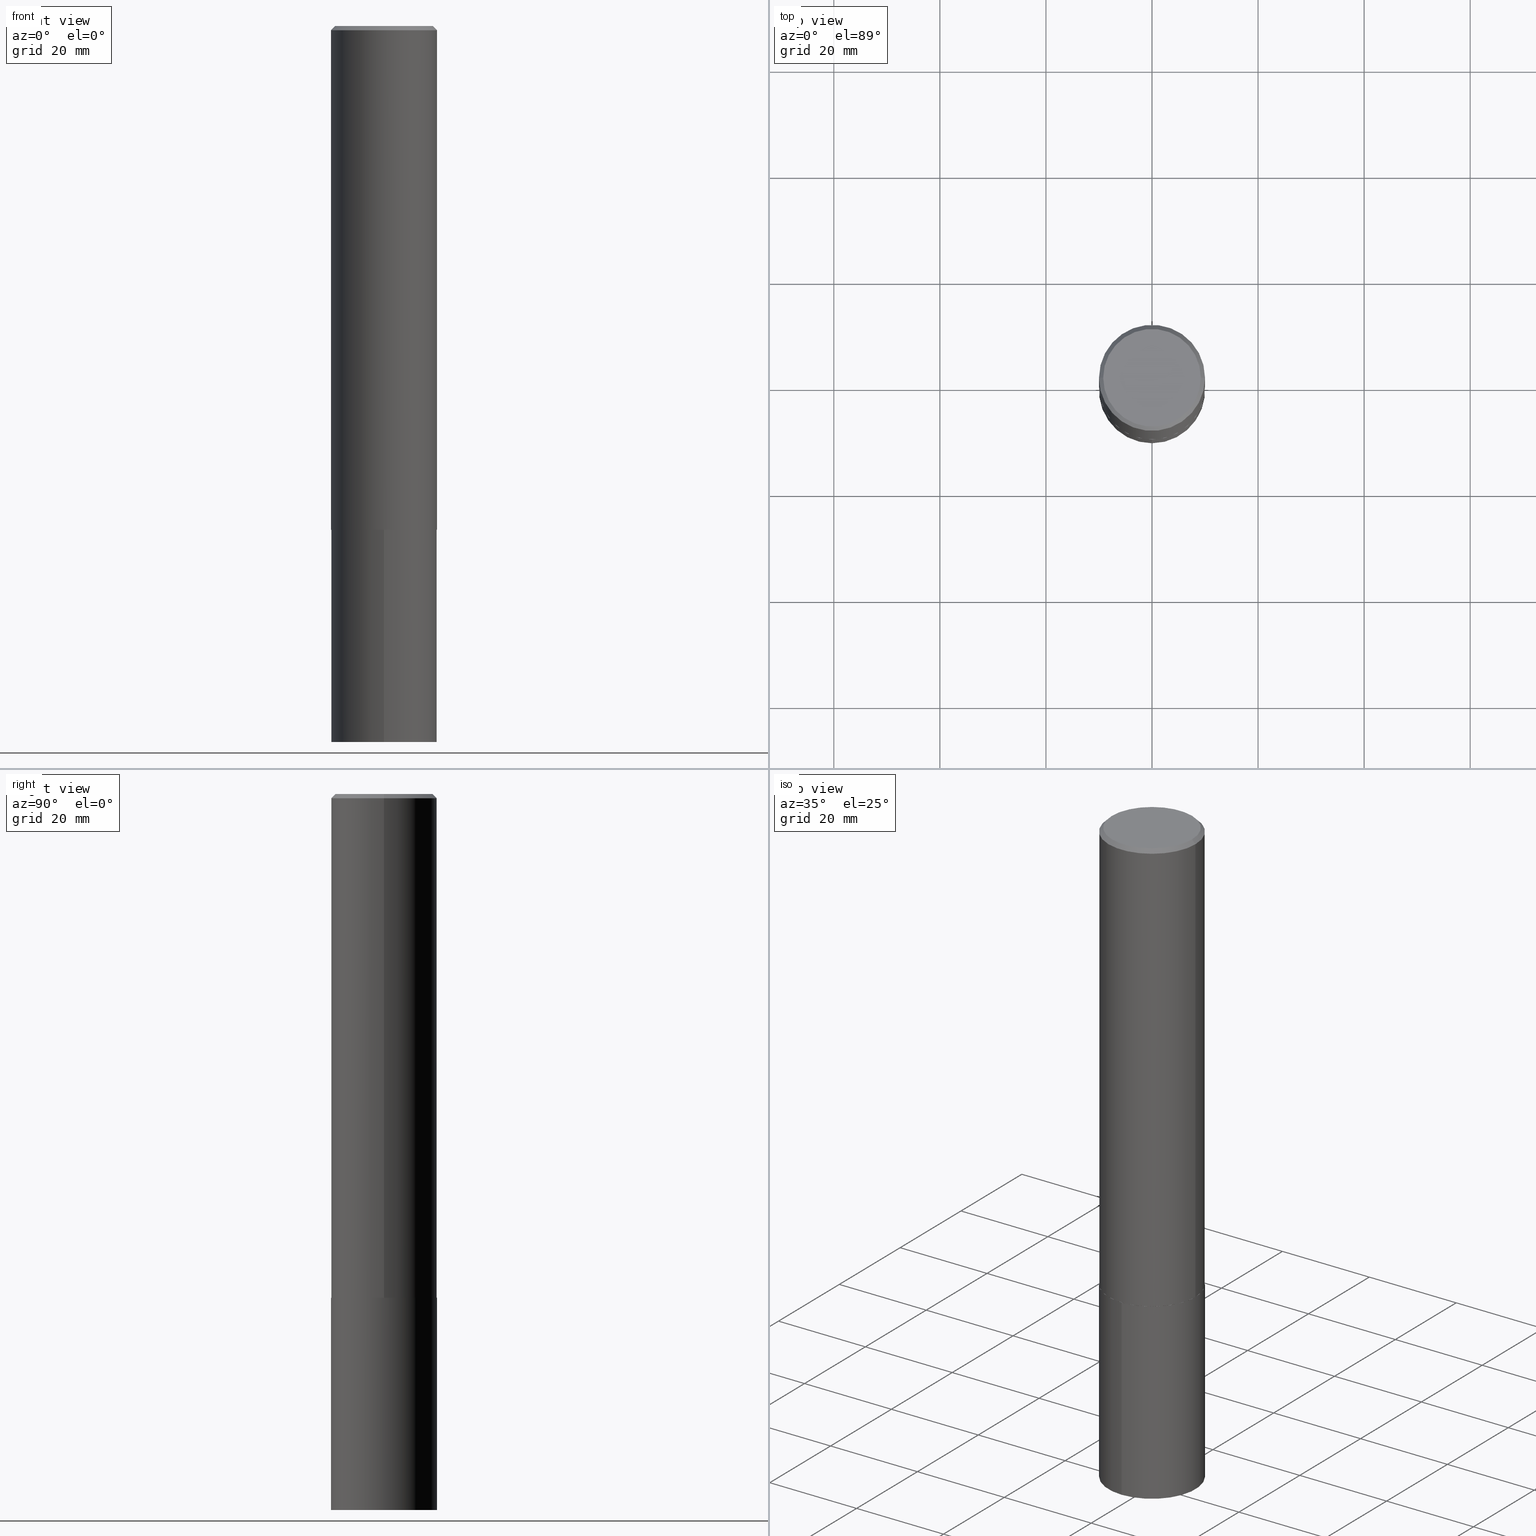
[diagram: canonical four-view strip — front | top / right | iso, engineering-drawing reading convention]
A machine part, canonical four-view strip (front | top / right | iso — engineering-drawing reading convention). The complete STEP part file that produces these views, byte-faithful:
ISO-10303-21;
HEADER;
FILE_DESCRIPTION (( 'STEP AP203' ),
    '1' );
FILE_NAME ('67184.STEP',
    '2024-04-23T12:52:43',
    ( '' ),
    ( '' ),
    'SwSTEP 2.0',
    'SolidWorks 2023',
    '' );
FILE_SCHEMA (( 'CONFIG_CONTROL_DESIGN' ));
ENDSEC;

DATA;
#1 = EDGE_CURVE ( 'NONE', #155, #301, #218, .T. ) ;
#2 = CYLINDRICAL_SURFACE ( 'NONE', #157, 0.3937000000000002164 ) ;
#3 = ORIENTED_EDGE ( 'NONE', *, *, #129, .F. ) ;
#4 = DIRECTION ( 'NONE',  ( 0.7071067811865456854, -7.319954787623249734E-15, -0.7071067811865493491 ) ) ;
#5 = CALENDAR_DATE ( 2024, 23, 4 ) ;
#6 = LINE ( 'NONE', #318, #302 ) ;
#7 = VECTOR ( 'NONE', #305, 39.37007874015748143 ) ;
#8 = VERTEX_POINT ( 'NONE', #189 ) ;
#9 = PERSON_AND_ORGANIZATION ( #136, #345 ) ;
#10 = EDGE_CURVE ( 'NONE', #123, #354, #14, .T. ) ;
#11 = DIRECTION ( 'NONE',  ( 1.000000000000000000, -6.982962677686265133E-15, 0.000000000000000000 ) ) ;
#12 = APPROVAL_STATUS ( 'not_yet_approved' ) ;
#13 = SECURITY_CLASSIFICATION_LEVEL ( 'unclassified' ) ;
#14 = CIRCLE ( 'NONE', #366, 0.3932000000000017148 ) ;
#15 = FACE_OUTER_BOUND ( 'NONE', #325, .T. ) ;
#16 = CC_DESIGN_PERSON_AND_ORGANIZATION_ASSIGNMENT ( #9, #60, ( #107 ) ) ;
#17 = DIRECTION ( 'NONE',  ( 2.445468806185136597E-29, -3.491481338843145583E-15, -1.000000000000000000 ) ) ;
#18 = EDGE_LOOP ( 'NONE', ( #321, #111, #291, #173 ) ) ;
#19 = DIRECTION ( 'NONE',  ( -6.982962677686265133E-15, -1.000000000000000000, 4.163344669033674845E-15 ) ) ;
#20 = DIMENSIONAL_EXPONENTS ( 1.000000000000000000, 0.000000000000000000, 0.000000000000000000, 0.000000000000000000, 0.000000000000000000, 0.000000000000000000, 0.000000000000000000 ) ;
#21 = VECTOR ( 'NONE', #243, 39.37007874015748143 ) ;
#22 = CONICAL_SURFACE ( 'NONE', #55, 0.3937000000000000499, 0.7853981633974457255 ) ;
#23 = DIRECTION ( 'NONE',  ( 2.438088387897960049E-29, -3.491481338843145188E-15, -1.000000000000000000 ) ) ;
#24 = ORIENTED_EDGE ( 'NONE', *, *, #138, .F. ) ;
#25 =( LENGTH_UNIT ( ) NAMED_UNIT ( * ) SI_UNIT ( $, .METRE. ) );
#26 = DIRECTION ( 'NONE',  ( 1.000000000000000000, -6.982962677686269077E-15, 0.000000000000000000 ) ) ;
#27 = CARTESIAN_POINT ( 'NONE',  ( 0.000000000000000000, 0.000000000000000000, 0.000000000000000000 ) ) ;
#28 = LENGTH_MEASURE_WITH_UNIT ( LENGTH_MEASURE( 0.02539999999999999897 ), #25 );
#29 = AXIS2_PLACEMENT_3D ( 'NONE', #162, #113, #11 ) ;
#30 = APPROVAL_ROLE ( '' ) ;
#31 = DATE_AND_TIME ( #34, #246 ) ;
#32 = CARTESIAN_POINT ( 'NONE',  ( 9.146053335132411814E-29, -1.305814020727336734E-14, -3.740000000000000657 ) ) ;
#33 = SECURITY_CLASSIFICATION ( '', '', #13 ) ;
#34 = CALENDAR_DATE ( 2024, 23, 4 ) ;
#35 = AXIS2_PLACEMENT_3D ( 'NONE', #186, #303, #141 ) ;
#36 = EDGE_CURVE ( 'NONE', #8, #274, #59, .T. ) ;
#37 = DATE_AND_TIME ( #172, #39 ) ;
#38 = EDGE_LOOP ( 'NONE', ( #209, #287, #239, #104 ) ) ;
#39 = LOCAL_TIME ( 8, 52, 43.00000000000000000, #86 ) ;
#40 = CIRCLE ( 'NONE', #29, 0.3937000000000004940 ) ;
#41 = FACE_OUTER_BOUND ( 'NONE', #38, .T. ) ;
#42 = CARTESIAN_POINT ( 'NONE',  ( 9.146053335132411814E-29, -1.305814020727336734E-14, -3.740000000000000657 ) ) ;
#43 = DIRECTION ( 'NONE',  ( -2.445468806185136597E-29, 3.491481338843145583E-15, 1.000000000000000000 ) ) ;
#44 = CC_DESIGN_SECURITY_CLASSIFICATION ( #33, ( #107 ) ) ;
#45 = DIRECTION ( 'NONE',  ( -2.438088387897960049E-29, 3.491481338843145188E-15, 1.000000000000000000 ) ) ;
#46 = CC_DESIGN_PERSON_AND_ORGANIZATION_ASSIGNMENT ( #257, #130, ( #33 ) ) ;
#47 = AXIS2_PLACEMENT_3D ( 'NONE', #268, #43, #102 ) ;
#48 = VERTEX_POINT ( 'NONE', #51 ) ;
#49 = ORIENTED_EDGE ( 'NONE', *, *, #10, .F. ) ;
#50 = DIRECTION ( 'NONE',  ( -2.445468806185136597E-29, 3.491481338843145583E-15, 1.000000000000000000 ) ) ;
#51 = CARTESIAN_POINT ( 'NONE',  ( 0.3937000000000000499, -2.858301198043932317E-15, -0.03125000000000013184 ) ) ;
#52 = EDGE_CURVE ( 'NONE', #98, #256, #40, .T. ) ;
#53 = DIRECTION ( 'NONE',  ( -2.445468806185136597E-29, 3.491481338843145583E-15, 1.000000000000000000 ) ) ;
#54 = DESIGN_CONTEXT ( 'detailed design', #280, 'design' ) ;
#55 = AXIS2_PLACEMENT_3D ( 'NONE', #297, #158, #269 ) ;
#56 = DIRECTION ( 'NONE',  ( 1.000000000000000000, -6.982962677686266711E-15, 4.876176775795935793E-29 ) ) ;
#57 = DIRECTION ( 'NONE',  ( 1.000000000000000000, -6.982962677686265922E-15, 0.000000000000000000 ) ) ;
#58 = LINE ( 'NONE', #362, #139 ) ;
#59 = CIRCLE ( 'NONE', #73, 0.3937000000000000499 ) ;
#60 = PERSON_AND_ORGANIZATION_ROLE ( 'creator' ) ;
#61 = ORIENTED_EDGE ( 'NONE', *, *, #336, .F. ) ;
#62 = VERTEX_POINT ( 'NONE', #294 ) ;
#63 = DIRECTION ( 'NONE',  ( -0.7071067811855816787, 7.493145998866864240E-15, 0.7071067811875133557 ) ) ;
#64 = APPROVAL_ROLE ( '' ) ;
#65 = ORIENTED_EDGE ( 'NONE', *, *, #96, .T. ) ;
#66 = LOCAL_TIME ( 8, 52, 43.00000000000000000, #201 ) ;
#67 = PERSON_AND_ORGANIZATION_ROLE ( 'creator' ) ;
#68 = CONICAL_SURFACE ( 'NONE', #261, 0.3937000000000004940, 0.7853981633960823716 ) ;
#69 = PERSON_AND_ORGANIZATION ( #136, #345 ) ;
#70 = DIRECTION ( 'NONE',  ( -6.982962677686265133E-15, -1.000000000000000000, 4.163344669033674845E-15 ) ) ;
#71 = EDGE_CURVE ( 'NONE', #274, #8, #234, .T. ) ;
#72 = LOCAL_TIME ( 8, 52, 43.00000000000000000, #262 ) ;
#73 = AXIS2_PLACEMENT_3D ( 'NONE', #334, #142, #251 ) ;
#74 = FACE_OUTER_BOUND ( 'NONE', #18, .T. ) ;
#75 = ORIENTED_EDGE ( 'NONE', *, *, #350, .T. ) ;
#76 = CARTESIAN_POINT ( 'NONE',  ( 0.3624500000000000499, -2.648337176426896411E-15, 4.818985154662952747E-18 ) ) ;
#77 = ADVANCED_FACE ( 'NONE', ( #15 ), #224, .F. ) ;
#78 = APPROVAL_PERSON_ORGANIZATION ( #265, #237, #30 ) ;
#79 = DIRECTION ( 'NONE',  ( 1.000000000000000000, -6.982962677686265922E-15, 4.876176775795935793E-29 ) ) ;
#80 = DIRECTION ( 'NONE',  ( -0.7071067811865456854, 2.468850131082237733E-15, -0.7071067811865493491 ) ) ;
#81 =( CONVERSION_BASED_UNIT ( 'INCH', #28 ) LENGTH_UNIT ( ) NAMED_UNIT ( #20 ) );
#82 = VECTOR ( 'NONE', #4, 39.37007874015748143 ) ;
#83 = CONICAL_SURFACE ( 'NONE', #221, 0.3937000000000004940, 0.7853981633960823716 ) ;
#84 =( NAMED_UNIT ( * ) SI_UNIT ( $, .STERADIAN. ) SOLID_ANGLE_UNIT ( ) );
#85 = EDGE_CURVE ( 'NONE', #214, #155, #266, .T. ) ;
#86 = COORDINATED_UNIVERSAL_TIME_OFFSET ( 5, 0, .BEHIND. ) ;
#87 = PLANE ( 'NONE',  #88 ) ;
#88 = AXIS2_PLACEMENT_3D ( 'NONE', #125, #315, #228 ) ;
#89 = PERSON_AND_ORGANIZATION ( #136, #345 ) ;
#90 = ORIENTED_EDGE ( 'NONE', *, *, #276, .F. ) ;
#91 = APPROVAL_STATUS ( 'not_yet_approved' ) ;
#92 = CARTESIAN_POINT ( 'NONE',  ( -0.3624500000000000499, 2.585529218446811143E-15, 4.818985154626951724E-18 ) ) ;
#93 =( GEOMETRIC_REPRESENTATION_CONTEXT ( 3 ) GLOBAL_UNCERTAINTY_ASSIGNED_CONTEXT ( ( #190 ) ) GLOBAL_UNIT_ASSIGNED_CONTEXT ( ( #81, #164, #84 ) ) REPRESENTATION_CONTEXT ( 'NONE', 'WORKASPACE' ) );
#94 = PRODUCT ( '67184', '67184', '', ( #222 ) ) ;
#95 = CALENDAR_DATE ( 2024, 23, 4 ) ;
#96 = EDGE_CURVE ( 'NONE', #274, #140, #357, .T. ) ;
#97 = DIRECTION ( 'NONE',  ( -1.000000000000000000, 6.982962677686265922E-15, -4.876176775795935793E-29 ) ) ;
#98 = VERTEX_POINT ( 'NONE', #137 ) ;
#99 = CIRCLE ( 'NONE', #308, 0.3937000000000000499 ) ;
#100 = MANIFOLD_SOLID_BREP ( 'Body-Move/Copy2[2]', #279 ) ;
#101 = EDGE_CURVE ( 'NONE', #140, #62, #165, .T. ) ;
#102 = DIRECTION ( 'NONE',  ( 1.000000000000000000, -6.982962677686266711E-15, 4.876156645145296500E-29 ) ) ;
#103 = CARTESIAN_POINT ( 'NONE',  ( 9.146053335132410693E-29, -1.305814020727336419E-14, -3.740000000000000213 ) ) ;
#104 = ORIENTED_EDGE ( 'NONE', *, *, #350, .F. ) ;
#105 = DIRECTION ( 'NONE',  ( -2.445468806185136597E-29, 3.491481338843145583E-15, 1.000000000000000000 ) ) ;
#106 = DIRECTION ( 'NONE',  ( -6.982962677686265133E-15, -1.000000000000000000, 4.163344669033674845E-15 ) ) ;
#107 = PRODUCT_DEFINITION_FORMATION_WITH_SPECIFIED_SOURCE ( 'ANY', '', #94, .NOT_KNOWN. ) ;
#108 = PRODUCT_RELATED_PRODUCT_CATEGORY ( 'detail', '', ( #94 ) ) ;
#109 = DIRECTION ( 'NONE',  ( -1.000000000000000000, 6.982962677686265922E-15, 0.000000000000000000 ) ) ;
#110 = AXIS2_PLACEMENT_3D ( 'NONE', #212, #331, #106 ) ;
#111 = ORIENTED_EDGE ( 'NONE', *, *, #138, .T. ) ;
#112 = DIRECTION ( 'NONE',  ( -2.445468806185136597E-29, 3.491481338843145583E-15, 1.000000000000000000 ) ) ;
#113 = DIRECTION ( 'NONE',  ( -2.445468806185136597E-29, 3.491481338843145583E-15, 1.000000000000000000 ) ) ;
#114 = CARTESIAN_POINT ( 'NONE',  ( 9.146053335132411814E-29, -1.305814020727336734E-14, -3.740000000000000657 ) ) ;
#115 = APPROVAL_PERSON_ORGANIZATION ( #89, #124, #64 ) ;
#116 = CARTESIAN_POINT ( 'NONE',  ( 0.3937000000000004940, -1.580558687280902827E-14, -3.739499999999999602 ) ) ;
#117 = AXIS2_PLACEMENT_3D ( 'NONE', #349, #23, #97 ) ;
#118 = DIRECTION ( 'NONE',  ( -2.445468806185136597E-29, 3.491481338843145583E-15, 1.000000000000000000 ) ) ;
#119 = EDGE_CURVE ( 'NONE', #256, #301, #215, .T. ) ;
#120 = ORIENTED_EDGE ( 'NONE', *, *, #129, .T. ) ;
#121 = DIRECTION ( 'NONE',  ( -6.982962677686265133E-15, -1.000000000000000000, 4.163344669033674845E-15 ) ) ;
#122 = EDGE_LOOP ( 'NONE', ( #147, #317, #90, #127 ) ) ;
#123 = VERTEX_POINT ( 'NONE', #275 ) ;
#124 = APPROVAL ( #91, 'UNSPECIFIED' ) ;
#125 = CARTESIAN_POINT ( 'NONE',  ( 9.146053335132411814E-29, -1.305814020727336734E-14, -3.740000000000000657 ) ) ;
#126 = APPLICATION_PROTOCOL_DEFINITION ( 'international standard', 'config_control_design', 1994, #280 ) ;
#127 = ORIENTED_EDGE ( 'NONE', *, *, #143, .F. ) ;
#128 = DATE_AND_TIME ( #5, #240 ) ;
#129 = EDGE_CURVE ( 'NONE', #256, #98, #248, .T. ) ;
#130 = PERSON_AND_ORGANIZATION_ROLE ( 'classification_officer' ) ;
#131 = DIRECTION ( 'NONE',  ( 1.000000000000000000, -6.982962677686265133E-15, 0.000000000000000000 ) ) ;
#132 = ORIENTED_EDGE ( 'NONE', *, *, #119, .F. ) ;
#133 = AXIS2_PLACEMENT_3D ( 'NONE', #103, #105, #244 ) ;
#134 = CARTESIAN_POINT ( 'NONE',  ( -0.3937000000000004940, -1.025898771591642474E-14, -3.739499999999999602 ) ) ;
#135 = ORIENTED_EDGE ( 'NONE', *, *, #36, .F. ) ;
#136 = PERSON ( 'UNSPECIFIED', 'UNSPECIFIED', 'UNSPECIFIED', ('UNSPECIFIED'), ('UNSPECIFIED'), ('UNSPECIFIED') ) ;
#137 = CARTESIAN_POINT ( 'NONE',  ( 0.3937000000000004940, -1.580558687280902827E-14, -3.739499999999999602 ) ) ;
#138 = EDGE_CURVE ( 'NONE', #214, #48, #200, .T. ) ;
#139 = VECTOR ( 'NONE', #364, 39.37007874015748143 ) ;
#140 = VERTEX_POINT ( 'NONE', #231 ) ;
#141 = DIRECTION ( 'NONE',  ( 1.000000000000000000, -6.982962677686265922E-15, 0.000000000000000000 ) ) ;
#142 = DIRECTION ( 'NONE',  ( -2.446583119360105066E-29, 3.489885578953823714E-15, 1.000000000000000000 ) ) ;
#143 = EDGE_CURVE ( 'NONE', #98, #48, #179, .T. ) ;
#144 = FACE_OUTER_BOUND ( 'NONE', #340, .T. ) ;
#145 = EDGE_LOOP ( 'NONE', ( #356, #267, #75, #3 ) ) ;
#146 = ADVANCED_FACE ( 'NONE', ( #175 ), #87, .F. ) ;
#147 = ORIENTED_EDGE ( 'NONE', *, *, #52, .T. ) ;
#148 = CLOSED_SHELL ( 'NONE', ( #298, #77, #182, #146 ) ) ;
#149 = CIRCLE ( 'NONE', #35, 0.3937000000000000499 ) ;
#150 = COORDINATED_UNIVERSAL_TIME_OFFSET ( 5, 0, .BEHIND. ) ;
#151 = PERSON_AND_ORGANIZATION_ROLE ( 'design_owner' ) ;
#152 = EDGE_CURVE ( 'NONE', #123, #256, #6, .T. ) ;
#153 = CARTESIAN_POINT ( 'NONE',  ( 0.3937000000000000499, -2.810086853561501142E-15, -0.03125000000000013184 ) ) ;
#154 = CARTESIAN_POINT ( 'NONE',  ( 9.144830600729317891E-29, -1.305639446660394189E-14, -3.739499999999999602 ) ) ;
#155 = VERTEX_POINT ( 'NONE', #92 ) ;
#156 = CARTESIAN_POINT ( 'NONE',  ( 2.696317802936262170E-29, -3.330934125989398418E-14, -5.315000000000001279 ) ) ;
#157 = AXIS2_PLACEMENT_3D ( 'NONE', #161, #112, #335 ) ;
#158 = DIRECTION ( 'NONE',  ( 2.445468806185136597E-29, -3.491481338843145583E-15, -1.000000000000000000 ) ) ;
#159 = CARTESIAN_POINT ( 'NONE',  ( 2.797406750687605505E-15, 0.3936999999999870048, -3.740000000000001990 ) ) ;
#160 = ORIENTED_EDGE ( 'NONE', *, *, #322, .F. ) ;
#161 = CARTESIAN_POINT ( 'NONE',  ( 0.000000000000000000, 0.000000000000000000, 0.000000000000000000 ) ) ;
#162 = CARTESIAN_POINT ( 'NONE',  ( 9.144830600729317891E-29, -1.305639446660394189E-14, -3.739499999999999602 ) ) ;
#163 = APPLICATION_CONTEXT ( 'configuration controlled 3d designs of mechanical parts and assemblies' ) ;
#164 =( NAMED_UNIT ( * ) PLANE_ANGLE_UNIT ( ) SI_UNIT ( $, .RADIAN. ) );
#165 = CIRCLE ( 'NONE', #110, 0.3937000000000000499 ) ;
#166 = AXIS2_PLACEMENT_3D ( 'NONE', #114, #188, #121 ) ;
#167 = CC_DESIGN_PERSON_AND_ORGANIZATION_ASSIGNMENT ( #319, #67, ( #242 ) ) ;
#168 = FACE_OUTER_BOUND ( 'NONE', #289, .T. ) ;
#169 = DIRECTION ( 'NONE',  ( 1.000000000000000000, 0.000000000000000000, 0.000000000000000000 ) ) ;
#170 = DATE_TIME_ROLE ( 'classification_date' ) ;
#171 = ORIENTED_EDGE ( 'NONE', *, *, #101, .T. ) ;
#172 = CALENDAR_DATE ( 2024, 23, 4 ) ;
#173 = ORIENTED_EDGE ( 'NONE', *, *, #1, .F. ) ;
#174 = ORIENTED_EDGE ( 'NONE', *, *, #36, .T. ) ;
#175 = FACE_OUTER_BOUND ( 'NONE', #260, .T. ) ;
#176 = AXIS2_PLACEMENT_3D ( 'NONE', #42, #183, #19 ) ;
#177 = CC_DESIGN_DATE_AND_TIME_ASSIGNMENT ( #31, #344, ( #242 ) ) ;
#178 = DIRECTION ( 'NONE',  ( -2.446583119360105066E-29, 3.489885578953823714E-15, 1.000000000000000000 ) ) ;
#179 = LINE ( 'NONE', #204, #292 ) ;
#180 = CALENDAR_DATE ( 2024, 23, 4 ) ;
#181 = FACE_OUTER_BOUND ( 'NONE', #245, .T. ) ;
#182 = ADVANCED_FACE ( 'NONE', ( #191 ), #263, .T. ) ;
#183 = DIRECTION ( 'NONE',  ( -2.446583119360105066E-29, 3.489885578953823714E-15, 1.000000000000000000 ) ) ;
#184 = ORIENTED_EDGE ( 'NONE', *, *, #85, .T. ) ;
#185 = FACE_OUTER_BOUND ( 'NONE', #247, .T. ) ;
#186 = CARTESIAN_POINT ( 'NONE',  ( 7.642090019328584270E-31, -1.091087918388487555E-16, -0.03125000000000013184 ) ) ;
#187 = CARTESIAN_POINT ( 'NONE',  ( -0.3937000000000002164, 2.797406750687515970E-15, -1.936584745033357576E-29 ) ) ;
#188 = DIRECTION ( 'NONE',  ( -2.446583119360105066E-29, 3.489885578953823714E-15, 1.000000000000000000 ) ) ;
#189 = CARTESIAN_POINT ( 'NONE',  ( -2.749192406204953055E-15, -0.3937000000000185906, -5.315000000000000391 ) ) ;
#190 = UNCERTAINTY_MEASURE_WITH_UNIT (LENGTH_MEASURE( 1.000000000000000082E-05 ), #81, 'distance_accuracy_value', 'NONE');
#191 = FACE_OUTER_BOUND ( 'NONE', #277, .T. ) ;
#192 = VECTOR ( 'NONE', #219, 39.37007874015748143 ) ;
#193 = ADVANCED_FACE ( 'NONE', ( #181 ), #361, .T. ) ;
#194 = CARTESIAN_POINT ( 'NONE',  ( 0.3932000000000017148, -1.580384113213961860E-14, -3.740000000000000213 ) ) ;
#195 = AXIS2_PLACEMENT_3D ( 'NONE', #284, #50, #56 ) ;
#196 = APPLICATION_PROTOCOL_DEFINITION ( 'international standard', 'config_control_design', 1994, #163 ) ;
#197 = DIRECTION ( 'NONE',  ( 1.000000000000000000, -6.982962677686265133E-15, 0.000000000000000000 ) ) ;
#198 = EDGE_CURVE ( 'NONE', #62, #140, #313, .T. ) ;
#199 = APPROVAL_PERSON_ORGANIZATION ( #69, #304, #264 ) ;
#200 = LINE ( 'NONE', #153, #82 ) ;
#201 = COORDINATED_UNIVERSAL_TIME_OFFSET ( 5, 0, .BEHIND. ) ;
#202 = ORIENTED_EDGE ( 'NONE', *, *, #1, .T. ) ;
#203 = ORIENTED_EDGE ( 'NONE', *, *, #270, .F. ) ;
#204 = CARTESIAN_POINT ( 'NONE',  ( 0.3937000000000002164, -2.749192406205084794E-15, 1.919750796630861012E-29 ) ) ;
#205 = ADVANCED_FACE ( 'NONE', ( #238 ), #83, .T. ) ;
#206 = ORIENTED_EDGE ( 'NONE', *, *, #336, .T. ) ;
#207 = ADVANCED_FACE ( 'NONE', ( #210 ), #359, .F. ) ;
#208 = PLANE ( 'NONE',  #271 ) ;
#209 = ORIENTED_EDGE ( 'NONE', *, *, #270, .T. ) ;
#210 = FACE_OUTER_BOUND ( 'NONE', #293, .T. ) ;
#211 = DIRECTION ( 'NONE',  ( -2.446583119360104505E-29, 3.489885578953823714E-15, 1.000000000000000000 ) ) ;
#212 = CARTESIAN_POINT ( 'NONE',  ( 9.146053335132411814E-29, -1.305814020727336734E-14, -3.740000000000000657 ) ) ;
#213 = ADVANCED_FACE ( 'NONE', ( #41 ), #68, .T. ) ;
#214 = VERTEX_POINT ( 'NONE', #76 ) ;
#215 = LINE ( 'NONE', #187, #7 ) ;
#216 = DIRECTION ( 'NONE',  ( -2.445468806185136597E-29, 3.491481338843145583E-15, 1.000000000000000000 ) ) ;
#217 = MANIFOLD_SOLID_BREP ( 'Body-Move/Copy2[1]', #148 ) ;
#218 = LINE ( 'NONE', #363, #337 ) ;
#219 = DIRECTION ( 'NONE',  ( 0.7071067811855816787, -2.468850131072140314E-15, 0.7071067811875133557 ) ) ;
#220 = AXIS2_PLACEMENT_3D ( 'NONE', #254, #118, #197 ) ;
#221 = AXIS2_PLACEMENT_3D ( 'NONE', #328, #272, #351 ) ;
#222 = MECHANICAL_CONTEXT ( 'NONE', #163, 'mechanical' ) ;
#223 = CYLINDRICAL_SURFACE ( 'NONE', #166, 0.3937000000000000499 ) ;
#224 = PLANE ( 'NONE',  #324 ) ;
#225 = DATE_AND_TIME ( #180, #66 ) ;
#226 = ORIENTED_EDGE ( 'NONE', *, *, #71, .T. ) ;
#227 = ADVANCED_FACE ( 'NONE', ( #185 ), #208, .F. ) ;
#228 = DIRECTION ( 'NONE',  ( 6.982962677686265922E-15, 1.000000000000000000, -3.489885578953823714E-15 ) ) ;
#229 = SHAPE_DEFINITION_REPRESENTATION ( #348, #295 ) ;
#230 = ORIENTED_EDGE ( 'NONE', *, *, #365, .F. ) ;
#231 = CARTESIAN_POINT ( 'NONE',  ( 2.797406750687644160E-15, 0.3936999999999870048, -3.740000000000001990 ) ) ;
#232 = AXIS2_PLACEMENT_3D ( 'NONE', #27, #311, #169 ) ;
#233 = PERSON_AND_ORGANIZATION ( #136, #345 ) ;
#234 = CIRCLE ( 'NONE', #352, 0.3937000000000000499 ) ;
#235 = DIRECTION ( 'NONE',  ( -2.446583119360105066E-29, 3.489885578953823714E-15, 1.000000000000000000 ) ) ;
#236 = DATE_AND_TIME ( #95, #72 ) ;
#237 = APPROVAL ( #12, 'UNSPECIFIED' ) ;
#238 = FACE_OUTER_BOUND ( 'NONE', #145, .T. ) ;
#239 = ORIENTED_EDGE ( 'NONE', *, *, #52, .F. ) ;
#240 = LOCAL_TIME ( 8, 52, 43.00000000000000000, #150 ) ;
#241 = AXIS2_PLACEMENT_3D ( 'NONE', #253, #338, #310 ) ;
#242 = PRODUCT_DEFINITION ( 'UNKNOWN', '', #107, #54 ) ;
#243 = DIRECTION ( 'NONE',  ( -2.446583119360105066E-29, 3.489885578953823714E-15, 1.000000000000000000 ) ) ;
#244 = DIRECTION ( 'NONE',  ( 1.000000000000000000, -6.982962677686269077E-15, 0.000000000000000000 ) ) ;
#245 = EDGE_LOOP ( 'NONE', ( #24, #160, #202, #206 ) ) ;
#246 = LOCAL_TIME ( 8, 52, 43.00000000000000000, #342 ) ;
#247 = EDGE_LOOP ( 'NONE', ( #203, #49 ) ) ;
#248 = CIRCLE ( 'NONE', #220, 0.3937000000000004940 ) ;
#249 = ADVANCED_FACE ( 'NONE', ( #74 ), #22, .T. ) ;
#250 = LINE ( 'NONE', #116, #192 ) ;
#251 = DIRECTION ( 'NONE',  ( -6.982962677686265133E-15, -1.000000000000000000, 2.775563112689116301E-15 ) ) ;
#252 = PERSON_AND_ORGANIZATION ( #136, #345 ) ;
#253 = CARTESIAN_POINT ( 'NONE',  ( -1.178467787315321927E-46, 1.682539673960461744E-32, 4.818985154644842843E-18 ) ) ;
#254 = CARTESIAN_POINT ( 'NONE',  ( 9.144830600729317891E-29, -1.305639446660394189E-14, -3.739499999999999602 ) ) ;
#255 = FACE_OUTER_BOUND ( 'NONE', #122, .T. ) ;
#256 = VERTEX_POINT ( 'NONE', #134 ) ;
#257 = PERSON_AND_ORGANIZATION ( #136, #345 ) ;
#258 = ORIENTED_EDGE ( 'NONE', *, *, #143, .T. ) ;
#259 = DIRECTION ( 'NONE',  ( -6.982962677686265133E-15, -1.000000000000000000, 2.775563112689116301E-15 ) ) ;
#260 = EDGE_LOOP ( 'NONE', ( #360, #171 ) ) ;
#261 = AXIS2_PLACEMENT_3D ( 'NONE', #154, #216, #131 ) ;
#262 = COORDINATED_UNIVERSAL_TIME_OFFSET ( 5, 0, .BEHIND. ) ;
#263 = CYLINDRICAL_SURFACE ( 'NONE', #285, 0.3937000000000000499 ) ;
#264 = APPROVAL_ROLE ( '' ) ;
#265 = PERSON_AND_ORGANIZATION ( #136, #345 ) ;
#266 = CIRCLE ( 'NONE', #47, 0.3624500000000000499 ) ;
#267 = ORIENTED_EDGE ( 'NONE', *, *, #10, .T. ) ;
#268 = CARTESIAN_POINT ( 'NONE',  ( -1.178467787315321927E-46, 1.682539673960461744E-32, 4.818985154644842843E-18 ) ) ;
#269 = DIRECTION ( 'NONE',  ( -1.000000000000000000, 6.982962677686265922E-15, 0.000000000000000000 ) ) ;
#270 = EDGE_CURVE ( 'NONE', #354, #123, #353, .T. ) ;
#271 = AXIS2_PLACEMENT_3D ( 'NONE', #299, #45, #79 ) ;
#272 = DIRECTION ( 'NONE',  ( -2.445468806185136597E-29, 3.491481338843145583E-15, 1.000000000000000000 ) ) ;
#273 = ORIENTED_EDGE ( 'NONE', *, *, #365, .T. ) ;
#274 = VERTEX_POINT ( 'NONE', #355 ) ;
#275 = CARTESIAN_POINT ( 'NONE',  ( -0.3932000000000017148, -1.026163694309053042E-14, -3.740000000000000213 ) ) ;
#276 = EDGE_CURVE ( 'NONE', #48, #301, #149, .T. ) ;
#277 = EDGE_LOOP ( 'NONE', ( #333, #226, #273, #330 ) ) ;
#278 = DIRECTION ( 'NONE',  ( -2.445468806185136597E-29, 3.491481338843145583E-15, 1.000000000000000000 ) ) ;
#279 = CLOSED_SHELL ( 'NONE', ( #249, #327, #213, #227, #205, #358, #193, #207 ) ) ;
#280 = APPLICATION_CONTEXT ( 'configuration controlled 3d designs of mechanical parts and assemblies' ) ;
#281 = CARTESIAN_POINT ( 'NONE',  ( -0.3937000000000000499, -3.785344878533878345E-15, -0.03125000000000013184 ) ) ;
#282 = CC_DESIGN_PERSON_AND_ORGANIZATION_ASSIGNMENT ( #233, #316, ( #107 ) ) ;
#283 = CC_DESIGN_APPROVAL ( #124, ( #33 ) ) ;
#284 = CARTESIAN_POINT ( 'NONE',  ( 0.000000000000000000, 0.000000000000000000, 0.000000000000000000 ) ) ;
#285 = AXIS2_PLACEMENT_3D ( 'NONE', #32, #178, #70 ) ;
#286 = APPROVAL_DATE_TIME ( #128, #124 ) ;
#287 = ORIENTED_EDGE ( 'NONE', *, *, #152, .T. ) ;
#288 = APPROVAL_STATUS ( 'not_yet_approved' ) ;
#289 = EDGE_LOOP ( 'NONE', ( #132, #120, #258, #61 ) ) ;
#290 = APPROVAL_DATE_TIME ( #37, #304 ) ;
#291 = ORIENTED_EDGE ( 'NONE', *, *, #276, .T. ) ;
#292 = VECTOR ( 'NONE', #341, 39.37007874015748143 ) ;
#293 = EDGE_LOOP ( 'NONE', ( #320, #184 ) ) ;
#294 = CARTESIAN_POINT ( 'NONE',  ( -2.749192406204991709E-15, -0.3937000000000130950, -3.739999999999998881 ) ) ;
#295 = ADVANCED_BREP_SHAPE_REPRESENTATION ( '67184', ( #217, #100, #232 ), #93 ) ;
#296 = AXIS2_PLACEMENT_3D ( 'NONE', #323, #17, #109 ) ;
#297 = CARTESIAN_POINT ( 'NONE',  ( 7.642090019328584270E-31, -1.091087918388487555E-16, -0.03125000000000013184 ) ) ;
#298 = ADVANCED_FACE ( 'NONE', ( #144 ), #223, .T. ) ;
#299 = CARTESIAN_POINT ( 'NONE',  ( 1.277503137442297155E-28, -7.861237106406461339E-15, -3.740000000000000213 ) ) ;
#300 = CC_DESIGN_APPROVAL ( #304, ( #242 ) ) ;
#301 = VERTEX_POINT ( 'NONE', #281 ) ;
#302 = VECTOR ( 'NONE', #63, 39.37007874015748143 ) ;
#303 = DIRECTION ( 'NONE',  ( -2.445468806185136597E-29, 3.491481338843145583E-15, 1.000000000000000000 ) ) ;
#304 = APPROVAL ( #288, 'UNSPECIFIED' ) ;
#305 = DIRECTION ( 'NONE',  ( -2.445468806185136877E-29, 3.491481338843145188E-15, 1.000000000000000000 ) ) ;
#306 = CYLINDRICAL_SURFACE ( 'NONE', #195, 0.3937000000000002164 ) ;
#307 = CARTESIAN_POINT ( 'NONE',  ( 9.146053335132410693E-29, -1.305814020727336419E-14, -3.740000000000000213 ) ) ;
#308 = AXIS2_PLACEMENT_3D ( 'NONE', #339, #53, #57 ) ;
#309 = CC_DESIGN_PERSON_AND_ORGANIZATION_ASSIGNMENT ( #252, #151, ( #94 ) ) ;
#310 = DIRECTION ( 'NONE',  ( 1.000000000000000000, -6.982962677686266711E-15, 4.876156645145296500E-29 ) ) ;
#311 = DIRECTION ( 'NONE',  ( 0.000000000000000000, 0.000000000000000000, 1.000000000000000000 ) ) ;
#312 = APPROVAL_DATE_TIME ( #225, #237 ) ;
#313 = CIRCLE ( 'NONE', #176, 0.3937000000000000499 ) ;
#314 = ORIENTED_EDGE ( 'NONE', *, *, #198, .F. ) ;
#315 = DIRECTION ( 'NONE',  ( 2.446583119360104505E-29, -3.489885578953823714E-15, -1.000000000000000000 ) ) ;
#316 = PERSON_AND_ORGANIZATION_ROLE ( 'design_supplier' ) ;
#317 = ORIENTED_EDGE ( 'NONE', *, *, #119, .T. ) ;
#318 = CARTESIAN_POINT ( 'NONE',  ( -0.3937000000000004940, -1.025898771591642474E-14, -3.739499999999999602 ) ) ;
#319 = PERSON_AND_ORGANIZATION ( #136, #345 ) ;
#320 = ORIENTED_EDGE ( 'NONE', *, *, #322, .T. ) ;
#321 = ORIENTED_EDGE ( 'NONE', *, *, #85, .F. ) ;
#322 = EDGE_CURVE ( 'NONE', #155, #214, #326, .T. ) ;
#323 = CARTESIAN_POINT ( 'NONE',  ( 7.642090019328584270E-31, -1.091087918388487555E-16, -0.03125000000000013184 ) ) ;
#324 = AXIS2_PLACEMENT_3D ( 'NONE', #156, #211, #329 ) ;
#325 = EDGE_LOOP ( 'NONE', ( #135, #343 ) ) ;
#326 = CIRCLE ( 'NONE', #241, 0.3624500000000000499 ) ;
#327 = ADVANCED_FACE ( 'NONE', ( #255 ), #306, .T. ) ;
#328 = CARTESIAN_POINT ( 'NONE',  ( 9.144830600729317891E-29, -1.305639446660394189E-14, -3.739499999999999602 ) ) ;
#329 = DIRECTION ( 'NONE',  ( -6.982962677686265922E-15, -1.000000000000000000, 3.489885578953823714E-15 ) ) ;
#330 = ORIENTED_EDGE ( 'NONE', *, *, #101, .F. ) ;
#331 = DIRECTION ( 'NONE',  ( -2.446583119360105066E-29, 3.489885578953823714E-15, 1.000000000000000000 ) ) ;
#332 = CC_DESIGN_APPROVAL ( #237, ( #107 ) ) ;
#333 = ORIENTED_EDGE ( 'NONE', *, *, #96, .F. ) ;
#334 = CARTESIAN_POINT ( 'NONE',  ( 1.299942174812458059E-28, -1.855470999412564443E-14, -5.315000000000001279 ) ) ;
#335 = DIRECTION ( 'NONE',  ( 1.000000000000000000, -6.982962677686266711E-15, 4.876176775795935793E-29 ) ) ;
#336 = EDGE_CURVE ( 'NONE', #301, #48, #99, .T. ) ;
#337 = VECTOR ( 'NONE', #80, 39.37007874015748143 ) ;
#338 = DIRECTION ( 'NONE',  ( -2.445468806185136597E-29, 3.491481338843145583E-15, 1.000000000000000000 ) ) ;
#339 = CARTESIAN_POINT ( 'NONE',  ( 7.642090019328584270E-31, -1.091087918388487555E-16, -0.03125000000000013184 ) ) ;
#340 = EDGE_LOOP ( 'NONE', ( #174, #65, #314, #230 ) ) ;
#341 = DIRECTION ( 'NONE',  ( -2.445468806185136877E-29, 3.491481338843145188E-15, 1.000000000000000000 ) ) ;
#342 = COORDINATED_UNIVERSAL_TIME_OFFSET ( 5, 0, .BEHIND. ) ;
#343 = ORIENTED_EDGE ( 'NONE', *, *, #71, .F. ) ;
#344 = DATE_TIME_ROLE ( 'creation_date' ) ;
#345 = ORGANIZATION ( 'UNSPECIFIED', 'UNSPECIFIED', '' ) ;
#346 = CARTESIAN_POINT ( 'NONE',  ( 1.299942174812458059E-28, -1.855470999412564443E-14, -5.315000000000001279 ) ) ;
#347 = CC_DESIGN_DATE_AND_TIME_ASSIGNMENT ( #236, #170, ( #33 ) ) ;
#348 = PRODUCT_DEFINITION_SHAPE ( 'NONE', 'NONE',  #242 ) ;
#349 = CARTESIAN_POINT ( 'NONE',  ( -5.892338936576609633E-47, 8.412698369802308719E-33, 2.409492577322421421E-18 ) ) ;
#350 = EDGE_CURVE ( 'NONE', #354, #98, #250, .T. ) ;
#351 = DIRECTION ( 'NONE',  ( 1.000000000000000000, -6.982962677686265133E-15, 0.000000000000000000 ) ) ;
#352 = AXIS2_PLACEMENT_3D ( 'NONE', #346, #235, #259 ) ;
#353 = CIRCLE ( 'NONE', #133, 0.3932000000000017148 ) ;
#354 = VERTEX_POINT ( 'NONE', #194 ) ;
#355 = CARTESIAN_POINT ( 'NONE',  ( 2.797406750687624833E-15, 0.3936999999999814537, -5.315000000000003055 ) ) ;
#356 = ORIENTED_EDGE ( 'NONE', *, *, #152, .F. ) ;
#357 = LINE ( 'NONE', #159, #21 ) ;
#358 = ADVANCED_FACE ( 'NONE', ( #168 ), #2, .T. ) ;
#359 = PLANE ( 'NONE',  #117 ) ;
#360 = ORIENTED_EDGE ( 'NONE', *, *, #198, .T. ) ;
#361 = CONICAL_SURFACE ( 'NONE', #296, 0.3937000000000000499, 0.7853981633974457255 ) ;
#362 = CARTESIAN_POINT ( 'NONE',  ( -2.749192406204991709E-15, -0.3937000000000130950, -3.739999999999998881 ) ) ;
#363 = CARTESIAN_POINT ( 'NONE',  ( -0.3937000000000000499, 2.640083614366234510E-15, -0.03125000000000013184 ) ) ;
#364 = DIRECTION ( 'NONE',  ( -2.446583119360105066E-29, 3.489885578953823714E-15, 1.000000000000000000 ) ) ;
#365 = EDGE_CURVE ( 'NONE', #8, #62, #58, .T. ) ;
#366 = AXIS2_PLACEMENT_3D ( 'NONE', #307, #278, #26 ) ;
ENDSEC;
END-ISO-10303-21;
